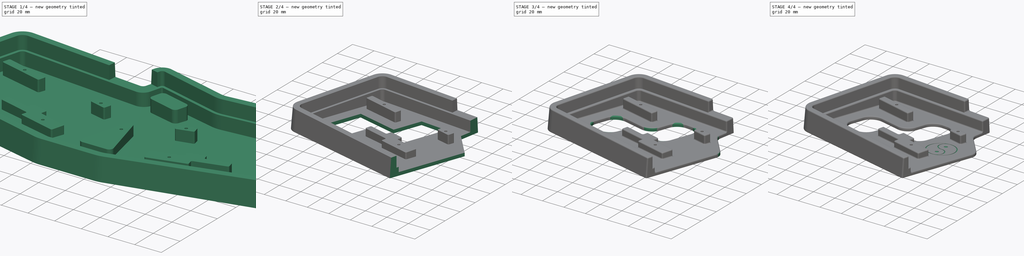
[diagram: build sequence overview — one tinted view per stage of 4, left to right]
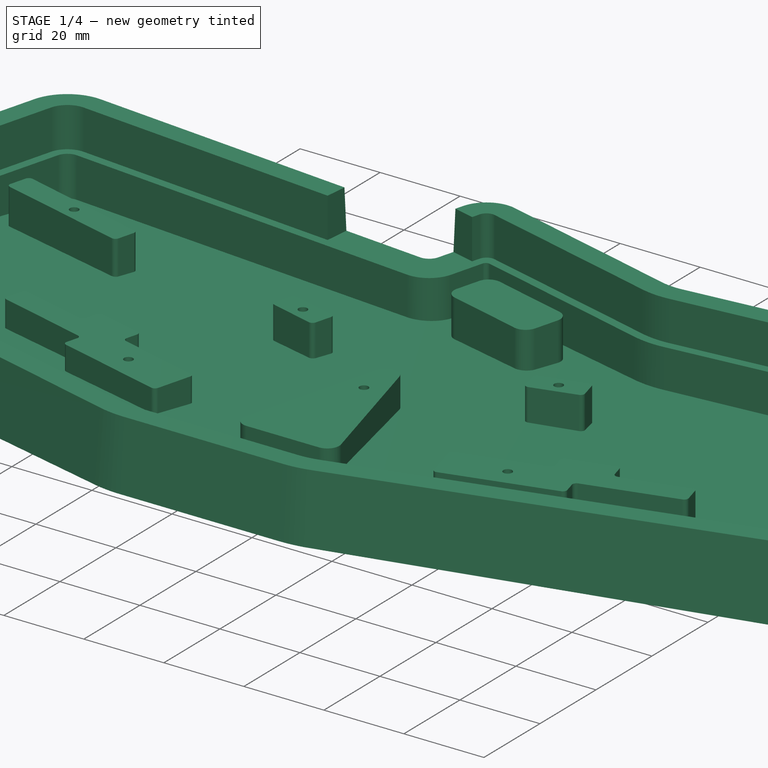
[diagram: stage 1 of 4 — iso view after this stage's code; geometry added in this stage tinted green]
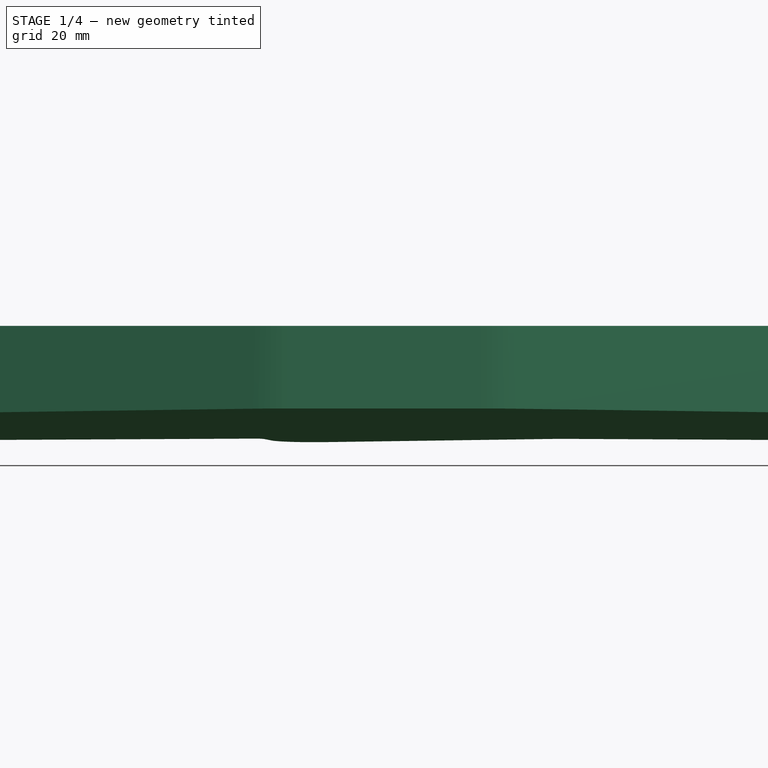
[diagram: stage 1 of 4 — front view after this stage's code; geometry added in this stage tinted green]
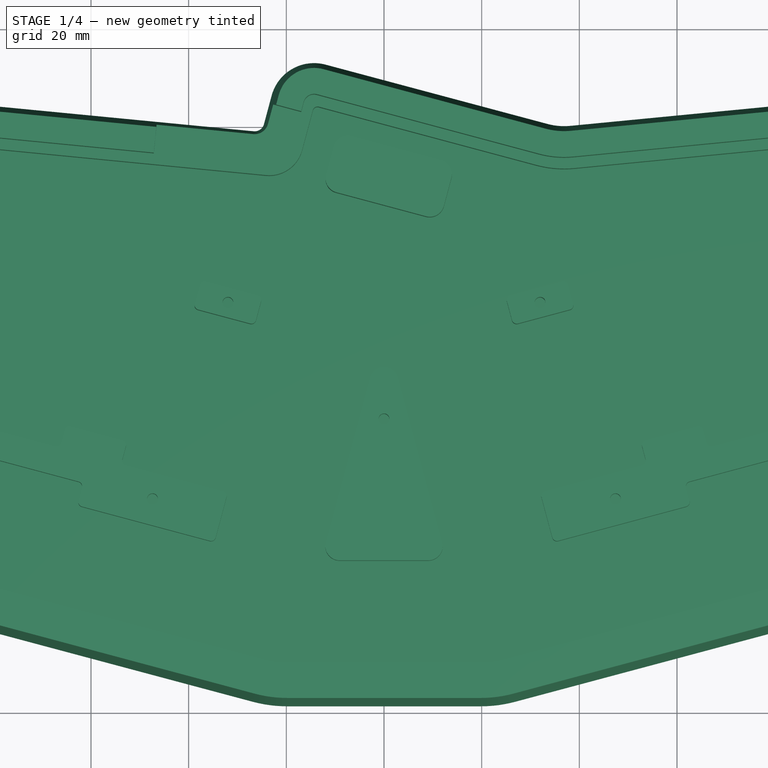
[diagram: stage 1 of 4 — top view after this stage's code; geometry added in this stage tinted green]
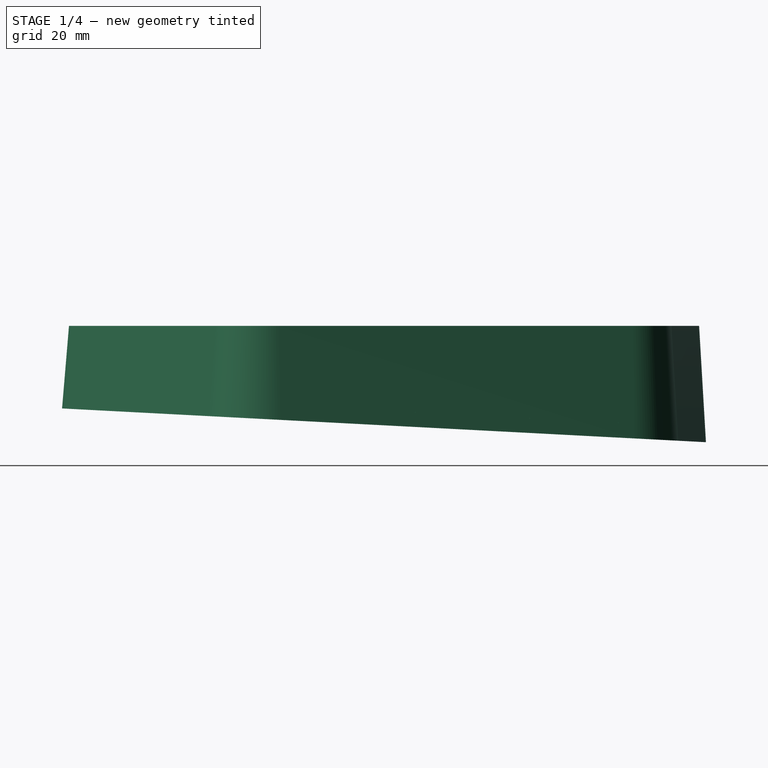
[diagram: stage 1 of 4 — right view after this stage's code; geometry added in this stage tinted green]
FCSTD DOCUMENT  (FreeCAD 0.20R)
Label: left
License: All rights reserved
LicenseURL: http://en.wikipedia.org/wiki/All_rights_reserved
objects: Sketcher::SketchObject×9, PartDesign::Pocket×5, PartDesign::Fillet×4, PartDesign::Hole×2, PartDesign::AdditiveLoft×1, PartDesign::Chamfer×1, PartDesign::Body×1
note: 36 computed .brp shape members not serialized (recipe doc carries the construction recipe); baked Part::Feature solids carry a one-line shape summary decoded from their .brp

FEATURE [Sketcher::SketchObject] Sketch
  AttachmentOffset = pos=(0,0,0) rot=(1,0,0;-0.05236rad)
  FullyConstrained = false
  MapMode = 5
  Placement = pos=(0,0,0) rot=(1,0,0;6.23083rad)
  Support = -> [XY_Plane]
  sketch-geometry (18):
    g0: LineSegment StartX=-11.9861 StartY=72.8819 StartZ=0 EndX=33.5174 EndY=60.6893 EndZ=0
    g1: LineSegment StartX=38.1366 StartY=60.307 StartZ=0 EndX=111.861 EndY=67.4548 EndZ=0
    g2: ArcOfCircle CenterX=113.019 CenterY=55.5108 CenterZ=0 NormalX=0 NormalY=0 NormalZ=1 AngleXU=0 Radius=12 StartAngle=0.261799 EndAngle=1.66745
    g3: LineSegment StartX=124.61 StartY=58.6166 StartZ=0 EndX=144.089 EndY=-14.0812 EndZ=0
    g4: ArcOfCircle CenterX=132.498 CenterY=-17.187 CenterZ=0 NormalX=0 NormalY=0 NormalZ=1 AngleXU=0 Radius=12 StartAngle=4.97419 EndAngle=6.54498
    g5: LineSegment StartX=135.604 StartY=-28.7781 StartZ=0 EndX=26.8319 EndY=-57.9235 EndZ=0
    g6: LineSegment StartX=-19.8438 StartY=-58.8435 StartZ=0 EndX=19.8438 EndY=-58.8435 EndZ=0
    g7: LineSegment StartX=-135.604 StartY=-28.7781 StartZ=0 EndX=-26.8319 EndY=-57.9235 EndZ=0
    g8: ArcOfCircle CenterX=19.8438 CenterY=-31.8435 CenterZ=0 NormalX=0 NormalY=0 NormalZ=1 AngleXU=0 Radius=27 StartAngle=4.71239 EndAngle=4.97419
    g9: ArcOfCircle CenterX=-19.8438 CenterY=-31.8435 CenterZ=0 NormalX=0 NormalY=0 NormalZ=1 AngleXU=0 Radius=27 StartAngle=4.45059 EndAngle=4.71239
    g10: ArcOfCircle CenterX=-132.498 CenterY=-17.187 CenterZ=0 NormalX=0 NormalY=0 NormalZ=1 AngleXU=0 Radius=12 StartAngle=2.87979 EndAngle=4.45059
    g11: LineSegment StartX=-124.61 StartY=58.6166 StartZ=0 EndX=-144.089 EndY=-14.0812 EndZ=0
    g12: ArcOfCircle CenterX=-113.019 CenterY=55.5108 CenterZ=0 NormalX=0 NormalY=0 NormalZ=1 AngleXU=0 Radius=12 StartAngle=1.47415 EndAngle=2.87979
    g13: ArcOfCircle CenterX=-14.3155 CenterY=64.1886 CenterZ=0 NormalX=0 NormalY=0 NormalZ=1 AngleXU=0 Radius=9 StartAngle=1.309 EndAngle=2.87979
    g14: ArcOfCircle CenterX=36.8821 CenterY=73.2463 CenterZ=0 NormalX=0 NormalY=0 NormalZ=1 AngleXU=0 Radius=13 StartAngle=4.45059 EndAngle=4.80904
    g15: LineSegment StartX=-24.5755 StartY=60.6712 StartZ=0 EndX=-23.0088 EndY=66.518 EndZ=0
    g16: LineSegment StartX=-26.7003 StartY=59.1982 StartZ=0 EndX=-111.861 EndY=67.4548 EndZ=0
    g17: ArcOfCircle CenterX=-26.5073 CenterY=61.1889 CenterZ=0 NormalX=0 NormalY=0 NormalZ=1 AngleXU=0 Radius=2 StartAngle=4.61574 EndAngle=6.02139
  constraints (18):
    c: Coincident(g10,g11)
    c: Coincident(g7,g10)
    c: Coincident(g11,g12)
    c: Coincident(g12,g16)
    c: Coincident(g7,g9)
    c: Coincident(g16,g17)
    c: Coincident(g15,g17)
    c: Coincident(g13,g15)
    c: Coincident(g6,g9)
    c: Coincident(g0,g13)
    c: Coincident(g6,g8)
    c: Coincident(g5,g8)
    c: Coincident(g0,g14)
    c: Coincident(g1,g14)
    c: Coincident(g1,g2)
    c: Coincident(g2,g3)
    c: Coincident(g4,g5)
    c: Coincident(g3,g4)
FEATURE [Sketcher::SketchObject] Sketch001
  AttachmentOffset = pos=(0,0,20) rot=(0,0,1;0rad)
  FullyConstrained = false
  MapMode = 5
  Placement = pos=(0,0,20) rot=(0,0,1;0rad)
  Support = -> [XY_Plane]
  sketch-geometry (18):
    g0: ArcOfCircle CenterX=-26.5073 CenterY=61.1889 CenterZ=0 NormalX=0 NormalY=0 NormalZ=1 AngleXU=0 Radius=3.5 StartAngle=4.61574 EndAngle=6.02139
    g1: LineSegment StartX=-23.1266 StartY=60.283 StartZ=0 EndX=-21.56 EndY=66.1297 EndZ=0
    g2: ArcOfCircle CenterX=-14.3155 CenterY=64.1886 CenterZ=0 NormalX=0 NormalY=0 NormalZ=1 AngleXU=0 Radius=7.5 StartAngle=1.309 EndAngle=2.87979
    g3: LineSegment StartX=-12.3744 StartY=71.433 StartZ=0 EndX=33.1292 EndY=59.2404 EndZ=0
    g4: ArcOfCircle CenterX=36.8821 CenterY=73.2463 CenterZ=0 NormalX=0 NormalY=0 NormalZ=1 AngleXU=0 Radius=14.5 StartAngle=4.45059 EndAngle=4.80904
    g5: LineSegment StartX=38.2813 StartY=58.814 StartZ=0 EndX=112.006 EndY=65.9618 EndZ=0
    g6: ArcOfCircle CenterX=113.019 CenterY=55.5108 CenterZ=0 NormalX=0 NormalY=0 NormalZ=1 AngleXU=0 Radius=10.5 StartAngle=0.261799 EndAngle=1.66745
    g7: LineSegment StartX=123.161 StartY=58.2284 StartZ=0 EndX=142.64 EndY=-14.4694 EndZ=0
    g8: ArcOfCircle CenterX=132.498 CenterY=-17.187 CenterZ=0 NormalX=0 NormalY=0 NormalZ=1 AngleXU=0 Radius=10.5 StartAngle=4.97419 EndAngle=6.54498
    g9: LineSegment StartX=135.216 StartY=-27.3292 StartZ=0 EndX=26.4437 EndY=-56.4746 EndZ=0
    g10: LineSegment StartX=-19.8438 StartY=-57.3435 StartZ=0 EndX=19.8438 EndY=-57.3435 EndZ=0
    g11: ArcOfCircle CenterX=19.8438 CenterY=-31.8435 CenterZ=0 NormalX=0 NormalY=0 NormalZ=1 AngleXU=0 Radius=25.5 StartAngle=4.71239 EndAngle=4.97419
    g12: ArcOfCircle CenterX=-19.8438 CenterY=-31.8435 CenterZ=0 NormalX=0 NormalY=0 NormalZ=1 AngleXU=0 Radius=25.5 StartAngle=4.45059 EndAngle=4.71239
    g13: LineSegment StartX=-135.216 StartY=-27.3292 StartZ=0 EndX=-26.4437 EndY=-56.4746 EndZ=0
    g14: ArcOfCircle CenterX=-132.498 CenterY=-17.187 CenterZ=0 NormalX=0 NormalY=0 NormalZ=1 AngleXU=0 Radius=10.5 StartAngle=2.87979 EndAngle=4.45059
    g15: LineSegment StartX=-123.161 StartY=58.2284 StartZ=0 EndX=-142.64 EndY=-14.4694 EndZ=0
    g16: LineSegment StartX=-26.8451 StartY=57.7052 StartZ=0 EndX=-112.006 EndY=65.9618 EndZ=0
    g17: ArcOfCircle CenterX=-113.019 CenterY=55.5108 CenterZ=0 NormalX=0 NormalY=0 NormalZ=1 AngleXU=0 Radius=10.5 StartAngle=1.47415 EndAngle=2.87979
  constraints (18):
    c: Coincident(g14,g15)
    c: Coincident(g13,g14)
    c: Coincident(g15,g17)
    c: Coincident(g16,g17)
    c: Coincident(g0,g16)
    c: Coincident(g12,g13)
    c: Coincident(g0,g1)
    c: Coincident(g1,g2)
    c: Coincident(g10,g12)
    c: Coincident(g2,g3)
    c: Coincident(g10,g11)
    c: Coincident(g9,g11)
    c: Coincident(g3,g4)
    c: Coincident(g4,g5)
    c: Coincident(g5,g6)
    c: Coincident(g6,g7)
    c: Coincident(g8,g9)
    c: Coincident(g7,g8)
FEATURE [PartDesign::AdditiveLoft] AdditiveLoft
  Closed = true
  Profile = -> Sketch001
  Ruled = true
  Sections = -> [Sketch]
FEATURE [Sketcher::SketchObject] Sketch002
  FullyConstrained = false
  MapMode = 5
  Placement = pos=(0,0,20) rot=(0,0,1;0rad)
  Support = -> [AdditiveLoft]
  sketch-geometry (19):
    g0: ArcOfCircle CenterX=-113.019 CenterY=55.5108 CenterZ=0 NormalX=0 NormalY=0 NormalZ=1 AngleXU=0 Radius=5.2 StartAngle=1.47415 EndAngle=2.87979
    g1: LineSegment StartX=-118.042 StartY=56.8566 StartZ=0 EndX=-137.521 EndY=-15.8411 EndZ=0
    g2: ArcOfCircle CenterX=-132.498 CenterY=-17.187 CenterZ=0 NormalX=0 NormalY=0 NormalZ=1 AngleXU=0 Radius=5.2 StartAngle=2.87979 EndAngle=4.45059
    g3: LineSegment StartX=-133.844 StartY=-22.2098 StartZ=0 EndX=-25.072 EndY=-51.3552 EndZ=0
    g4: ArcOfCircle CenterX=-19.8438 CenterY=-31.8435 CenterZ=0 NormalX=0 NormalY=0 NormalZ=1 AngleXU=0 Radius=20.2 StartAngle=4.45059 EndAngle=4.71239
    g5: LineSegment StartX=-19.8438 StartY=-52.0435 StartZ=0 EndX=19.8438 EndY=-52.0435 EndZ=0
    g6: ArcOfCircle CenterX=19.8438 CenterY=-31.8435 CenterZ=0 NormalX=0 NormalY=0 NormalZ=1 AngleXU=0 Radius=20.2 StartAngle=4.71239 EndAngle=4.97419
    g7: LineSegment StartX=133.844 StartY=-22.2098 StartZ=0 EndX=25.072 EndY=-51.3552 EndZ=0
    g8: ArcOfCircle CenterX=132.498 CenterY=-17.187 CenterZ=0 NormalX=0 NormalY=0 NormalZ=1 AngleXU=0 Radius=5.2 StartAngle=4.97419 EndAngle=6.54498
    g9: LineSegment StartX=118.042 StartY=56.8566 StartZ=0 EndX=137.521 EndY=-15.8411 EndZ=0
    g10: ArcOfCircle CenterX=113.019 CenterY=55.5108 CenterZ=0 NormalX=0 NormalY=0 NormalZ=1 AngleXU=0 Radius=5.2 StartAngle=0.261799 EndAngle=1.66745
    g11: LineSegment StartX=38.7928 StartY=53.5387 StartZ=0 EndX=112.517 EndY=60.6865 EndZ=0
    g12: ArcOfCircle CenterX=36.8821 CenterY=73.2463 CenterZ=0 NormalX=0 NormalY=0 NormalZ=1 AngleXU=0 Radius=19.8 StartAngle=4.45059 EndAngle=4.80904
    g13: LineSegment StartX=-13.7461 StartY=66.3136 StartZ=0 EndX=31.7574 EndY=54.121 EndZ=0
    g14: ArcOfCircle CenterX=-14.3155 CenterY=64.1886 CenterZ=0 NormalX=0 NormalY=0 NormalZ=1 AngleXU=0 Radius=2.2 StartAngle=1.309 EndAngle=2.87979
    g15: LineSegment StartX=-47.1347 StartY=54.3475 StartZ=0 EndX=-112.517 EndY=60.6865 EndZ=0
    g16: LineSegment StartX=-45.5694 StartY=70.4925 StartZ=0 EndX=-47.1347 EndY=54.3475 EndZ=0
    g17: LineSegment StartX=-16.9582 StartY=62.8261 StartZ=0 EndX=-45.5694 EndY=70.4925 EndZ=0
    g18: LineSegment StartX=-16.9582 StartY=62.8261 StartZ=0 EndX=-16.4405 EndY=64.758 EndZ=0
  constraints (19):
    c: Coincident(g1,g2)
    c: Coincident(g2,g3)
    c: Coincident(g0,g1)
    c: Coincident(g0,g15)
    c: Coincident(g15,g16)
    c: Coincident(g16,g17)
    c: Coincident(g3,g4)
    c: Coincident(g4,g5)
    c: Coincident(g17,g18)
    c: Coincident(g14,g18)
    c: Coincident(g13,g14)
    c: Coincident(g5,g6)
    c: Coincident(g6,g7)
    c: Coincident(g12,g13)
    c: Coincident(g11,g12)
    c: Coincident(g10,g11)
    c: Coincident(g9,g10)
    c: Coincident(g7,g8)
    c: Coincident(g8,g9)
FEATURE [PartDesign::Pocket] Pocket
  BaseFeature = -> AdditiveLoft
  Direction = (0,0,-1)
  Length = 10
  Length2 = 5
  Profile = -> Sketch002
  ReferenceAxis = -> Sketch002 [N_Axis]
  Type = 0
FEATURE [Sketcher::SketchObject] Sketch003
  FullyConstrained = false
  MapMode = 5
  Placement = pos=(0,0,10) rot=(0,0,1;0rad)
  Support = -> [Pocket]
  sketch-geometry (129):
    g0: ArcOfCircle CenterX=-113.885 CenterY=42.9832 CenterZ=0 NormalX=0 NormalY=0 NormalZ=1 AngleXU=0 Radius=1 StartAngle=1.309 EndAngle=2.87979
    g1: LineSegment StartX=-115.899 StartY=39.33 StartZ=0 EndX=-114.85 EndY=43.242 EndZ=0
    g2: ArcOfCircle CenterX=-114.933 CenterY=39.0712 CenterZ=0 NormalX=0 NormalY=0 NormalZ=1 AngleXU=0 Radius=1 StartAngle=2.87979 EndAngle=4.45059
    g3: LineSegment StartX=-115.192 StartY=38.1052 StartZ=0 EndX=-83.8654 EndY=29.7114 EndZ=0
    g4: ArcOfCircle CenterX=-83.6066 CenterY=30.6773 CenterZ=0 NormalX=0 NormalY=0 NormalZ=1 AngleXU=0 Radius=1 StartAngle=4.45059 EndAngle=6.02139
    g5: LineSegment StartX=-82.6406 StartY=30.4185 StartZ=0 EndX=-81.5924 EndY=34.3305 EndZ=0
    g6: LineSegment StartX=-82.2995 StartY=35.5553 StartZ=0 EndX=-113.626 EndY=43.9491 EndZ=0
    g7: ArcOfCircle CenterX=-82.5584 CenterY=34.5893 CenterZ=0 NormalX=0 NormalY=0 NormalZ=1 AngleXU=0 Radius=1 StartAngle=6.02139 EndAngle=7.59218
    g8: ArcOfCircle CenterX=-26.1231 CenterY=24.3981 CenterZ=0 NormalX=0 NormalY=0 NormalZ=1 AngleXU=0 Radius=1 StartAngle=6.02139 EndAngle=7.59218
    g9: LineSegment StartX=-25.1571 StartY=24.1392 StartZ=0 EndX=-26.2054 EndY=20.2272 EndZ=0
    g10: ArcOfCircle CenterX=-27.1713 CenterY=20.4861 CenterZ=0 NormalX=0 NormalY=0 NormalZ=1 AngleXU=0 Radius=1 StartAngle=4.45059 EndAngle=6.02139
    g11: LineSegment StartX=-38.0553 StartY=22.3671 StartZ=0 EndX=-27.4301 EndY=19.5201 EndZ=0
    g12: ArcOfCircle CenterX=-37.7965 CenterY=23.3331 CenterZ=0 NormalX=0 NormalY=0 NormalZ=1 AngleXU=0 Radius=1 StartAngle=2.87979 EndAngle=4.45059
    g13: LineSegment StartX=-37.7142 StartY=27.5039 StartZ=0 EndX=-38.7624 EndY=23.5919 EndZ=0
    g14: LineSegment StartX=-36.4894 StartY=28.211 StartZ=0 EndX=-25.8643 EndY=25.364 EndZ=0
    g15: ArcOfCircle CenterX=-36.7483 CenterY=27.2451 CenterZ=0 NormalX=0 NormalY=0 NormalZ=1 AngleXU=0 Radius=1 StartAngle=1.309 EndAngle=2.87979
    g16: ArcOfCircle CenterX=-52.5825 CenterY=-8.47381 CenterZ=0 NormalX=0 NormalY=0 NormalZ=1 AngleXU=0 Radius=1 StartAngle=2.87979 EndAngle=4.45059
    g17: LineSegment StartX=-53.5484 StartY=-8.21499 StartZ=0 EndX=-52.8335 EndY=-5.54662 EndZ=0
    g18: ArcOfCircle CenterX=-53.7994 CenterY=-5.28781 CenterZ=0 NormalX=0 NormalY=0 NormalZ=1 AngleXU=0 Radius=1 StartAngle=6.02139 EndAngle=7.59218
    g19: LineSegment StartX=-64.1657 StartY=-1.47487 StartZ=0 EndX=-53.5406 EndY=-4.32188 EndZ=0
    g20: ArcOfCircle CenterX=-64.4246 CenterY=-2.4408 CenterZ=0 NormalX=0 NormalY=0 NormalZ=1 AngleXU=0 Radius=1 StartAngle=1.309 EndAngle=2.87979
    g21: LineSegment StartX=-66.1055 StartY=-4.85035 StartZ=0 EndX=-65.3905 EndY=-2.18198 EndZ=0
    g22: ArcOfCircle CenterX=-67.0714 CenterY=-4.59153 CenterZ=0 NormalX=0 NormalY=0 NormalZ=1 AngleXU=0 Radius=1 StartAngle=4.45059 EndAngle=6.02139
    g23: ArcOfCircle CenterX=-61.598 CenterY=-17.0062 CenterZ=0 NormalX=0 NormalY=0 NormalZ=1 AngleXU=0 Radius=1 StartAngle=2.87979 EndAngle=4.45059
    g24: LineSegment StartX=-62.564 StartY=-16.7473 StartZ=0 EndX=-61.849 EndY=-14.079 EndZ=0
    g25: ArcOfCircle CenterX=-62.8149 CenterY=-13.8201 CenterZ=0 NormalX=0 NormalY=0 NormalZ=1 AngleXU=0 Radius=1 StartAngle=6.02139 EndAngle=7.59218
    g26: ArcOfCircle CenterX=8e-15 CenterY=7.71825 CenterZ=0 NormalX=0 NormalY=0 NormalZ=1 AngleXU=0 Radius=3 StartAngle=0.261799 EndAngle=2.87979
    g27: LineSegment StartX=-2.89778 StartY=8.4947 StartZ=0 EndX=-11.9326 EndY=-25.2235 EndZ=0
    g28: ArcOfCircle CenterX=-9.03478 CenterY=-26 CenterZ=0 NormalX=0 NormalY=0 NormalZ=1 AngleXU=0 Radius=3 StartAngle=2.87979 EndAngle=4.71239
    g29: LineSegment StartX=-9.03478 StartY=-29 StartZ=0 EndX=9.03478 EndY=-29 EndZ=0
    g30: LineSegment StartX=2.89778 StartY=8.4947 StartZ=0 EndX=11.9326 EndY=-25.2235 EndZ=0
    g31: ArcOfCircle CenterX=9.03478 CenterY=-26 CenterZ=0 NormalX=0 NormalY=0 NormalZ=1 AngleXU=0 Radius=3 StartAngle=4.71239 EndAngle=6.54498
    g32: ArcOfCircle CenterX=113.885 CenterY=42.9832 CenterZ=0 NormalX=0 NormalY=0 NormalZ=1 AngleXU=0 Radius=1 StartAngle=0.261799 EndAngle=1.8326
    g33: LineSegment StartX=115.899 StartY=39.33 StartZ=0 EndX=114.85 EndY=43.242 EndZ=0
    g34: ArcOfCircle CenterX=114.933 CenterY=39.0712 CenterZ=0 NormalX=0 NormalY=0 NormalZ=1 AngleXU=0 Radius=1 StartAngle=4.97419 EndAngle=6.54498
    g35: LineSegment StartX=115.192 StartY=38.1052 StartZ=0 EndX=83.8654 EndY=29.7114 EndZ=0
    g36: ArcOfCircle CenterX=83.6066 CenterY=30.6773 CenterZ=0 NormalX=0 NormalY=0 NormalZ=1 AngleXU=0 Radius=1 StartAngle=3.40339 EndAngle=4.97419
    g37: LineSegment StartX=82.6406 StartY=30.4185 StartZ=0 EndX=81.5924 EndY=34.3305 EndZ=0
    g38: LineSegment StartX=82.2995 StartY=35.5553 StartZ=0 EndX=113.626 EndY=43.9491 EndZ=0
    g39: ArcOfCircle CenterX=82.5584 CenterY=34.5893 CenterZ=0 NormalX=0 NormalY=0 NormalZ=1 AngleXU=0 Radius=1 StartAngle=1.8326 EndAngle=3.40339
    g40: ArcOfCircle CenterX=26.1231 CenterY=24.3981 CenterZ=0 NormalX=0 NormalY=0 NormalZ=1 AngleXU=0 Radius=1 StartAngle=1.8326 EndAngle=3.40339
    g41: LineSegment StartX=25.1571 StartY=24.1392 StartZ=0 EndX=26.2054 EndY=20.2272 EndZ=0
    g42: ArcOfCircle CenterX=27.1713 CenterY=20.4861 CenterZ=0 NormalX=0 NormalY=0 NormalZ=1 AngleXU=0 Radius=1 StartAngle=3.40339 EndAngle=4.97419
    g43: LineSegment StartX=38.0553 StartY=22.3671 StartZ=0 EndX=27.4301 EndY=19.5201 EndZ=0
    g44: ArcOfCircle CenterX=37.7965 CenterY=23.3331 CenterZ=0 NormalX=0 NormalY=0 NormalZ=1 AngleXU=0 Radius=1 StartAngle=4.97419 EndAngle=6.54498
    g45: LineSegment StartX=37.7142 StartY=27.5039 StartZ=0 EndX=38.7624 EndY=23.5919 EndZ=0
    g46: LineSegment StartX=36.4894 StartY=28.211 StartZ=0 EndX=25.8643 EndY=25.364 EndZ=0
    g47: ArcOfCircle CenterX=36.7483 CenterY=27.2451 CenterZ=0 NormalX=0 NormalY=0 NormalZ=1 AngleXU=0 Radius=1 StartAngle=0.261799 EndAngle=1.8326
    g48: LineSegment StartX=-52.8413 StartY=-9.43974 StartZ=0 EndX=-32.9433 EndY=-14.7714 EndZ=0
    g49: ArcOfCircle CenterX=-33.2021 CenterY=-15.7373 CenterZ=0 NormalX=0 NormalY=0 NormalZ=1 AngleXU=0 Radius=1 StartAngle=6.02139 EndAngle=7.59218
    g50: LineSegment StartX=-61.8569 StartY=-17.9721 StartZ=0 EndX=-35.6803 EndY=-24.9861 EndZ=0
    g51: LineSegment StartX=-32.2362 StartY=-15.9962 StartZ=0 EndX=-34.4555 EndY=-24.279 EndZ=0
    g52: ArcOfCircle CenterX=-35.4215 CenterY=-24.0202 CenterZ=0 NormalX=0 NormalY=0 NormalZ=1 AngleXU=0 Radius=1 StartAngle=4.45059 EndAngle=6.02139
    g53: LineSegment StartX=-82.9963 StartY=-1.35973 StartZ=0 EndX=-67.3302 EndY=-5.55745 EndZ=0
    g54: ArcOfCircle CenterX=-83.2552 CenterY=-2.32566 CenterZ=0 NormalX=0 NormalY=0 NormalZ=1 AngleXU=0 Radius=1 StartAngle=1.309 EndAngle=2.87979
    g55: LineSegment StartX=-84.5007 StartY=-6.97418 StartZ=0 EndX=-62.5561 EndY=-12.8542 EndZ=0
    g56: LineSegment StartX=-84.2211 StartY=-2.06684 StartZ=0 EndX=-85.2078 EndY=-5.74943 EndZ=0
    g57: ArcOfCircle CenterX=-84.2419 CenterY=-6.00825 CenterZ=0 NormalX=0 NormalY=0 NormalZ=1 AngleXU=0 Radius=1 StartAngle=2.87979 EndAngle=4.45059
    g58: ArcOfCircle CenterX=52.5825 CenterY=-8.47381 CenterZ=0 NormalX=0 NormalY=0 NormalZ=1 AngleXU=0 Radius=1 StartAngle=4.97419 EndAngle=6.54498
    g59: LineSegment StartX=53.5484 StartY=-8.21499 StartZ=0 EndX=52.8335 EndY=-5.54662 EndZ=0
    g60: ArcOfCircle CenterX=53.7994 CenterY=-5.28781 CenterZ=0 NormalX=0 NormalY=0 NormalZ=1 AngleXU=0 Radius=1 StartAngle=1.8326 EndAngle=3.40339
    g61: LineSegment StartX=64.1657 StartY=-1.47487 StartZ=0 EndX=53.5406 EndY=-4.32188 EndZ=0
    g62: ArcOfCircle CenterX=64.4246 CenterY=-2.4408 CenterZ=0 NormalX=0 NormalY=0 NormalZ=1 AngleXU=0 Radius=1 StartAngle=0.261799 EndAngle=1.8326
    g63: LineSegment StartX=66.1055 StartY=-4.85035 StartZ=0 EndX=65.3905 EndY=-2.18198 EndZ=0
    g64: ArcOfCircle CenterX=67.0714 CenterY=-4.59153 CenterZ=0 NormalX=0 NormalY=0 NormalZ=1 AngleXU=0 Radius=1 StartAngle=3.40339 EndAngle=4.97419
    g65: ArcOfCircle CenterX=61.598 CenterY=-17.0062 CenterZ=0 NormalX=0 NormalY=0 NormalZ=1 AngleXU=0 Radius=1 StartAngle=4.97419 EndAngle=6.54498
    g66: LineSegment StartX=62.564 StartY=-16.7473 StartZ=0 EndX=61.849 EndY=-14.079 EndZ=0
    g67: ArcOfCircle CenterX=62.8149 CenterY=-13.8201 CenterZ=0 NormalX=0 NormalY=0 NormalZ=1 AngleXU=0 Radius=1 StartAngle=1.8326 EndAngle=3.40339
    g68: LineSegment StartX=52.8413 StartY=-9.43974 StartZ=0 EndX=32.9433 EndY=-14.7714 EndZ=0
    g69: ArcOfCircle CenterX=33.2021 CenterY=-15.7373 CenterZ=0 NormalX=0 NormalY=0 NormalZ=1 AngleXU=0 Radius=1 StartAngle=1.8326 EndAngle=3.40339
    g70: LineSegment StartX=61.8569 StartY=-17.9721 StartZ=0 EndX=35.6803 EndY=-24.9861 EndZ=0
    g71: LineSegment StartX=32.2362 StartY=-15.9962 StartZ=0 EndX=34.4555 EndY=-24.279 EndZ=0
    g72: ArcOfCircle CenterX=35.4215 CenterY=-24.0202 CenterZ=0 NormalX=0 NormalY=0 NormalZ=1 AngleXU=0 Radius=1 StartAngle=3.40339 EndAngle=4.97419
    g73: LineSegment StartX=82.9963 StartY=-1.35973 StartZ=0 EndX=67.3302 EndY=-5.55745 EndZ=0
    g74: ArcOfCircle CenterX=83.2552 CenterY=-2.32566 CenterZ=0 NormalX=0 NormalY=0 NormalZ=1 AngleXU=0 Radius=1 StartAngle=0.261799 EndAngle=1.8326
    g75: LineSegment StartX=84.5007 StartY=-6.97418 StartZ=0 EndX=62.5561 EndY=-12.8542 EndZ=0
    g76: LineSegment StartX=84.2211 StartY=-2.06684 StartZ=0 EndX=85.2078 EndY=-5.74943 EndZ=0
    g77: ArcOfCircle CenterX=84.2419 CenterY=-6.00825 CenterZ=0 NormalX=0 NormalY=0 NormalZ=1 AngleXU=0 Radius=1 StartAngle=4.97419 EndAngle=6.54498
    g78: ArcOfCircle CenterX=127.67 CenterY=-17.6654 CenterZ=0 NormalX=0 NormalY=0 NormalZ=1 AngleXU=0 Radius=1 StartAngle=4.97419 EndAngle=6.54498
    g79: LineSegment StartX=127.342 StartY=-12.577 StartZ=0 EndX=128.636 EndY=-17.4066 EndZ=0
    g80: ArcOfCircle CenterX=126.376 CenterY=-12.8358 CenterZ=0 NormalX=0 NormalY=0 NormalZ=1 AngleXU=0 Radius=1 StartAngle=0.261799 EndAngle=1.8326
    g81: LineSegment StartX=115.492 StartY=-14.7169 StartZ=0 EndX=126.117 EndY=-11.8699 EndZ=0
    g82: ArcOfCircle CenterX=115.751 CenterY=-15.6828 CenterZ=0 NormalX=0 NormalY=0 NormalZ=1 AngleXU=0 Radius=1 StartAngle=1.8326 EndAngle=3.40339
    g83: LineSegment StartX=116.079 StartY=-20.7713 StartZ=0 EndX=114.785 EndY=-15.9416 EndZ=0
    g84: LineSegment StartX=117.304 StartY=-21.4784 StartZ=0 EndX=127.929 EndY=-18.6314 EndZ=0
    g85: ArcOfCircle CenterX=117.045 CenterY=-20.5124 CenterZ=0 NormalX=0 NormalY=0 NormalZ=1 AngleXU=0 Radius=1 StartAngle=3.40339 EndAngle=4.97419
    g86: Circle CenterX=121.71 CenterY=-16.6741 CenterZ=0 NormalX=0 NormalY=0 NormalZ=-1 AngleXU=0 Radius=1.1
    g87: Circle CenterX=47.4001 CenterY=-16.3717 CenterZ=0 NormalX=0 NormalY=0 NormalZ=-1 AngleXU=0 Radius=1.1
    g88: Circle CenterX=31.9598 CenterY=23.8656 CenterZ=0 NormalX=0 NormalY=0 NormalZ=-1 AngleXU=0 Radius=1.1
    g89: Circle CenterX=98.1026 CenterY=36.658 CenterZ=0 NormalX=0 NormalY=0 NormalZ=-1 AngleXU=0 Radius=1.1
    g90: Circle CenterX=0 CenterY=0 CenterZ=0 NormalX=0 NormalY=0 NormalZ=-1 AngleXU=0 Radius=1.1
    g91: ArcOfCircle CenterX=-127.67 CenterY=-17.6654 CenterZ=0 NormalX=0 NormalY=0 NormalZ=1 AngleXU=0 Radius=1 StartAngle=2.87979 EndAngle=4.45059
    g92: LineSegment StartX=-127.342 StartY=-12.577 StartZ=0 EndX=-128.636 EndY=-17.4066 EndZ=0
    g93: ArcOfCircle CenterX=-126.376 CenterY=-12.8358 CenterZ=0 NormalX=0 NormalY=0 NormalZ=1 AngleXU=0 Radius=1 StartAngle=1.309 EndAngle=2.87979
    g94: LineSegment StartX=-115.492 StartY=-14.7169 StartZ=0 EndX=-126.117 EndY=-11.8699 EndZ=0
    g95: ArcOfCircle CenterX=-115.751 CenterY=-15.6828 CenterZ=0 NormalX=0 NormalY=0 NormalZ=1 AngleXU=0 Radius=1 StartAngle=6.02139 EndAngle=7.59218
    g96: LineSegment StartX=-116.079 StartY=-20.7713 StartZ=0 EndX=-114.785 EndY=-15.9416 EndZ=0
    g97: LineSegment StartX=-117.304 StartY=-21.4784 StartZ=0 EndX=-127.929 EndY=-18.6314 EndZ=0
    g98: ArcOfCircle CenterX=-117.045 CenterY=-20.5124 CenterZ=0 NormalX=0 NormalY=0 NormalZ=1 AngleXU=0 Radius=1 StartAngle=4.45059 EndAngle=6.02139
    g99: Circle CenterX=-121.71 CenterY=-16.6741 CenterZ=0 NormalX=0 NormalY=0 NormalZ=-1 AngleXU=0 Radius=1.1
    g100: Circle CenterX=-47.4001 CenterY=-16.3717 CenterZ=0 NormalX=0 NormalY=0 NormalZ=-1 AngleXU=0 Radius=1.1
    g101: Circle CenterX=-31.9598 CenterY=23.8656 CenterZ=0 NormalX=0 NormalY=0 NormalZ=-1 AngleXU=0 Radius=1.1
    g102: Circle CenterX=-98.1026 CenterY=36.658 CenterZ=0 NormalX=0 NormalY=0 NormalZ=-1 AngleXU=0 Radius=1.1
    g103: LineSegment StartX=-115.917 StartY=56.2872 StartZ=0 EndX=-135.396 EndY=-16.4105 EndZ=0
    g104: LineSegment StartX=-24.1961 StartY=49.9132 StartZ=0 EndX=-112.729 EndY=58.4968 EndZ=0
    g105: LineSegment StartX=39.0051 StartY=51.349 StartZ=0 EndX=112.729 EndY=58.4968 EndZ=0
    g106: LineSegment StartX=115.917 StartY=56.2872 StartZ=0 EndX=135.396 EndY=-16.4105 EndZ=0
    g107: LineSegment StartX=133.275 StartY=-20.0848 StartZ=0 EndX=24.5026 EndY=-49.2302 EndZ=0
    g108: LineSegment StartX=-19.8438 StartY=-49.8435 StartZ=0 EndX=19.8438 EndY=-49.8435 EndZ=0
    g109: LineSegment StartX=-133.275 StartY=-20.0848 StartZ=0 EndX=-24.5026 EndY=-49.2302 EndZ=0
    g110: ArcOfCircle CenterX=-23.5206 CenterY=56.8806 CenterZ=0 NormalX=0 NormalY=0 NormalZ=1 AngleXU=0 Radius=7 StartAngle=4.61574 EndAngle=6.02139
    g111: ArcOfCircle CenterX=-113.019 CenterY=55.5108 CenterZ=0 NormalX=0 NormalY=0 NormalZ=1 AngleXU=0 Radius=3 StartAngle=1.47415 EndAngle=2.87979
    g112: ArcOfCircle CenterX=-132.498 CenterY=-17.187 CenterZ=0 NormalX=0 NormalY=0 NormalZ=1 AngleXU=0 Radius=3 StartAngle=2.87979 EndAngle=4.45059
    g113: ArcOfCircle CenterX=-19.8438 CenterY=-31.8435 CenterZ=0 NormalX=0 NormalY=0 NormalZ=1 AngleXU=0 Radius=18 StartAngle=4.45059 EndAngle=4.71239
    g114: ArcOfCircle CenterX=19.8438 CenterY=-31.8435 CenterZ=0 NormalX=0 NormalY=0 NormalZ=1 AngleXU=0 Radius=18 StartAngle=4.71239 EndAngle=4.97419
    g115: ArcOfCircle CenterX=132.498 CenterY=-17.187 CenterZ=0 NormalX=0 NormalY=0 NormalZ=1 AngleXU=0 Radius=3 StartAngle=4.97419 EndAngle=6.54498
    g116: ArcOfCircle CenterX=113.019 CenterY=55.5108 CenterZ=0 NormalX=0 NormalY=0 NormalZ=1 AngleXU=0 Radius=3 StartAngle=0.261799 EndAngle=1.66745
    g117: ArcOfCircle CenterX=36.8821 CenterY=73.2463 CenterZ=0 NormalX=0 NormalY=0 NormalZ=1 AngleXU=0 Radius=22 StartAngle=4.45059 EndAngle=4.80904
    g118: ArcOfCircle CenterX=-7.43391 CenterY=55.0977 CenterZ=0 NormalX=0 NormalY=0 NormalZ=1 AngleXU=0 Radius=3 StartAngle=1.309 EndAngle=2.87979
    g119: LineSegment StartX=-11.8846 StartY=50.0786 StartZ=0 EndX=-10.3317 EndY=55.8742 EndZ=0
    g120: ArcOfCircle CenterX=-8.98683 CenterY=49.3022 CenterZ=0 NormalX=0 NormalY=0 NormalZ=1 AngleXU=0 Radius=3 StartAngle=2.87979 EndAngle=4.45059
    g121: LineSegment StartX=8.58931 StartY=41.4868 StartZ=0 EndX=-9.76328 EndY=46.4044 EndZ=0
    g122: ArcOfCircle CenterX=9.36576 CenterY=44.3846 CenterZ=0 NormalX=0 NormalY=0 NormalZ=1 AngleXU=0 Radius=3 StartAngle=4.45059 EndAngle=6.02139
    g123: LineSegment StartX=13.8165 StartY=49.4037 StartZ=0 EndX=12.2635 EndY=43.6082 EndZ=0
    g124: LineSegment StartX=-6.65746 StartY=57.9955 StartZ=0 EndX=11.6951 EndY=53.078 EndZ=0
    g125: ArcOfCircle CenterX=10.9187 CenterY=50.1802 CenterZ=0 NormalX=0 NormalY=0 NormalZ=1 AngleXU=0 Radius=3 StartAngle=6.02139 EndAngle=7.59218
    g126: LineSegment StartX=-16.7591 StartY=55.0688 StartZ=0 EndX=-14.5743 EndY=63.2227 EndZ=0
    g127: LineSegment StartX=-13.3496 StartY=63.9298 StartZ=0 EndX=31.188 EndY=51.996 EndZ=0
    g128: ArcOfCircle CenterX=-13.6084 CenterY=62.9638 CenterZ=0 NormalX=0 NormalY=0 NormalZ=1 AngleXU=0 Radius=1 StartAngle=1.309 EndAngle=2.87979
  constraints (120):
    c: Coincident(g103,g112)
    c: Coincident(g109,g112)
    c: Coincident(g91,g92)
    c: Coincident(g91,g97)
    c: Coincident(g92,g93)
    c: Coincident(g93,g94)
    c: Coincident(g97,g98)
    c: Coincident(g96,g98)
    c: Coincident(g103,g111)
    c: Coincident(g1,g2)
    c: Coincident(g94,g95)
    c: Coincident(g2,g3)
    c: Coincident(g0,g1)
    c: Coincident(g95,g96)
    c: Coincident(g0,g6)
    c: Coincident(g104,g111)
    c: Coincident(g56,g57)
    c: Coincident(g55,g57)
    c: Coincident(g54,g56)
    c: Coincident(g3,g4)
    c: Coincident(g53,g54)
    c: Coincident(g4,g5)
    c: Coincident(g6,g7)
    c: Coincident(g5,g7)
    c: Coincident(g22,g53)
    c: Coincident(g21,g22)
    c: Coincident(g20,g21)
    c: Coincident(g19,g20)
    c: Coincident(g23,g24)
    c: Coincident(g25,g55)
    c: Coincident(g23,g50)
    c: Coincident(g24,g25)
    c: Coincident(g16,g17)
    c: Coincident(g18,g19)
    c: Coincident(g16,g48)
    c: Coincident(g17,g18)
    c: Coincident(g12,g13)
    c: Coincident(g11,g12)
    c: Coincident(g13,g15)
    c: Coincident(g14,g15)
    c: Coincident(g50,g52)
    c: Coincident(g51,g52)
    c: Coincident(g48,g49)
    c: Coincident(g49,g51)
    c: Coincident(g10,g11)
    c: Coincident(g9,g10)
    c: Coincident(g8,g14)
    c: Coincident(g8,g9)
    c: Coincident(g109,g113)
    c: Coincident(g104,g110)
    c: Coincident(g108,g113)
    c: Coincident(g110,g126)
    c: Coincident(g126,g128)
    c: Coincident(g127,g128)
    c: Coincident(g27,g28)
    c: Coincident(g119,g120)
    c: Coincident(g118,g119)
    c: Coincident(g120,g121)
    c: Coincident(g28,g29)
    c: Coincident(g118,g124)
    c: Coincident(g26,g27)
    c: Coincident(g26,g30)
    c: Coincident(g121,g122)
    c: Coincident(g29,g31)
    c: Coincident(g124,g125)
    c: Coincident(g30,g31)
    c: Coincident(g122,g123)
    c: Coincident(g123,g125)
    c: Coincident(g108,g114)
    c: Coincident(g107,g114)
    c: Coincident(g40,g41)
    c: Coincident(g40,g46)
    c: Coincident(g41,g42)
    c: Coincident(g42,g43)
    c: Coincident(g117,g127)
    c: Coincident(g69,g71)
    c: Coincident(g68,g69)
    c: Coincident(g71,g72)
    c: Coincident(g70,g72)
    c: Coincident(g46,g47)
    c: Coincident(g45,g47)
    c: Coincident(g43,g44)
    c: Coincident(g44,g45)
    c: Coincident(g105,g117)
    c: Coincident(g59,g60)
    c: Coincident(g58,g68)
    c: Coincident(g60,g61)
    c: Coincident(g58,g59)
    c: Coincident(g66,g67)
    c: Coincident(g65,g70)
    c: Coincident(g67,g75)
    c: Coincident(g65,g66)
    c: Coincident(g61,g62)
    c: Coincident(g62,g63)
    c: Coincident(g63,g64)
    c: Coincident(g64,g73)
    c: Coincident(g37,g39)
    c: Coincident(g38,g39)
    c: Coincident(g36,g37)
    c: Coincident(g73,g74)
    c: Coincident(g35,g36)
    c: Coincident(g74,g76)
    c: Coincident(g75,g77)
    c: Coincident(g76,g77)
    c: Coincident(g105,g116)
    c: Coincident(g32,g38)
    c: Coincident(g82,g83)
    c: Coincident(g32,g33)
    c: Coincident(g34,g35)
    c: Coincident(g81,g82)
    c: Coincident(g33,g34)
    c: Coincident(g106,g116)
    c: Coincident(g83,g85)
    c: Coincident(g84,g85)
    c: Coincident(g80,g81)
    c: Coincident(g79,g80)
    c: Coincident(g78,g84)
    c: Coincident(g78,g79)
    c: Coincident(g107,g115)
    c: Coincident(g106,g115)
FEATURE [PartDesign::Pocket] Pocket001
  BaseFeature = -> Pocket
  Direction = (0,0,-1)
  Length = 0
  Length2 = 5
  Offset = -3
  Profile = -> Sketch003
  ReferenceAxis = -> Sketch003 [N_Axis]
  Type = 3
  UpToFace = -> Pocket [Face40]
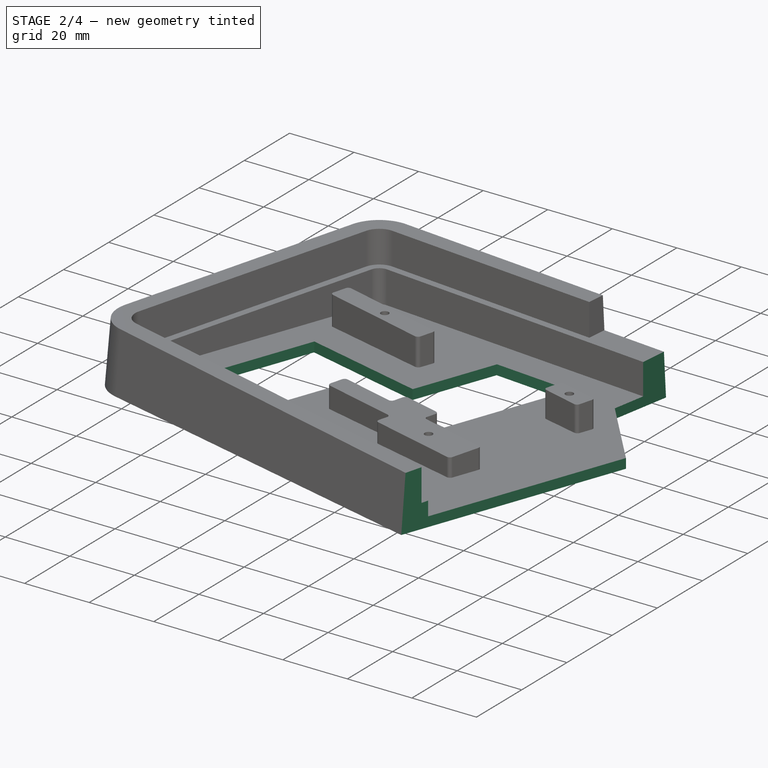
[diagram: stage 2 of 4 — iso view after this stage's code; geometry added in this stage tinted green]
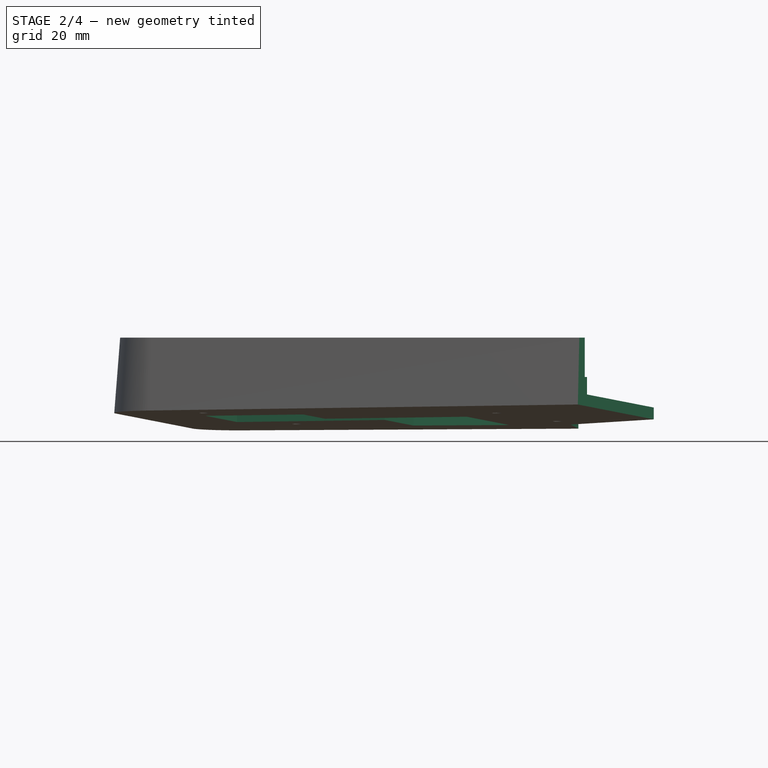
[diagram: stage 2 of 4 — front view after this stage's code; geometry added in this stage tinted green]
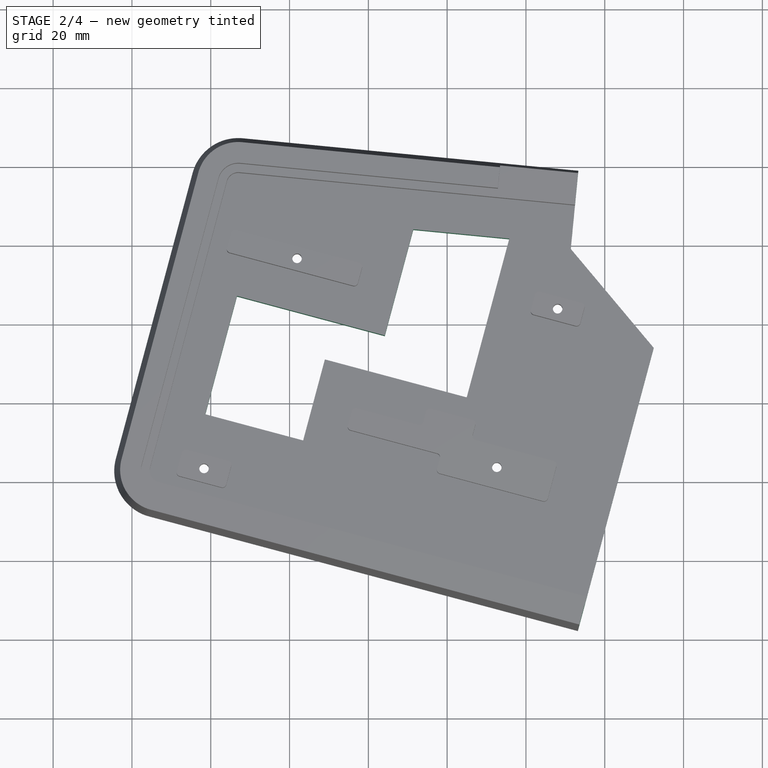
[diagram: stage 2 of 4 — top view after this stage's code; geometry added in this stage tinted green]
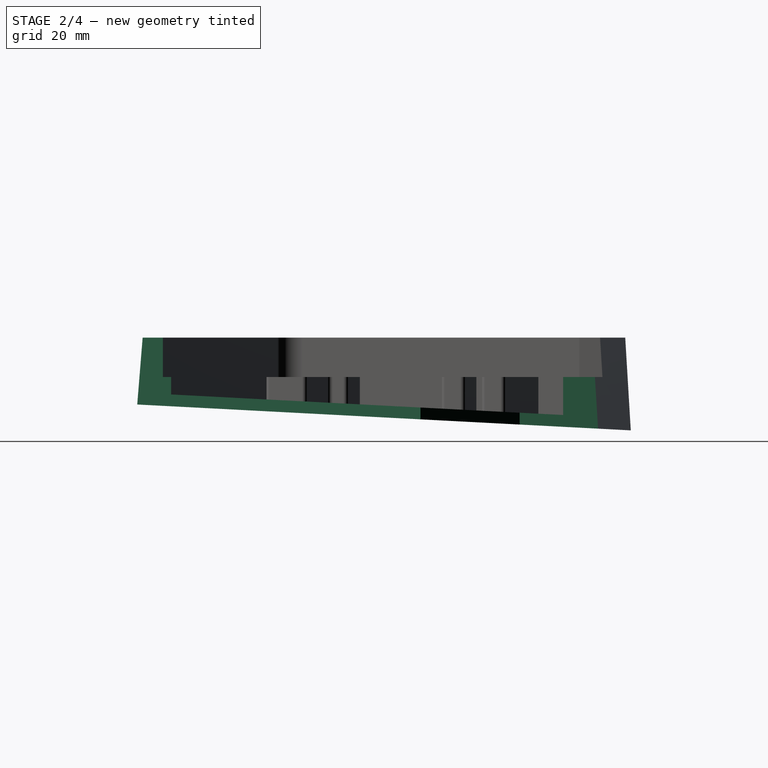
[diagram: stage 2 of 4 — right view after this stage's code; geometry added in this stage tinted green]
FEATURE [Sketcher::SketchObject] Sketch005
  FullyConstrained = false
  MapMode = 5
  Placement = pos=(0,0,10) rot=(0,0,1;0rad)
  sketch-geometry (4):
    g0: Circle CenterX=-121.71 CenterY=-16.6741 CenterZ=0 NormalX=0 NormalY=0 NormalZ=1 AngleXU=0 Radius=1.1
    g1: Circle CenterX=-47.4001 CenterY=-16.3717 CenterZ=0 NormalX=0 NormalY=0 NormalZ=1 AngleXU=0 Radius=1.1
    g2: Circle CenterX=-31.9598 CenterY=23.8656 CenterZ=0 NormalX=0 NormalY=0 NormalZ=1 AngleXU=0 Radius=1.1
    g3: Circle CenterX=-98.1026 CenterY=36.658 CenterZ=0 NormalX=0 NormalY=0 NormalZ=1 AngleXU=0 Radius=1.1
  constraints (4):
    c: Equal(g3,g2)
    c: Equal(g2,g1)
    c: Equal(g1,g0)
    c: Diameter(g1) = 2.2
FEATURE [PartDesign::Hole] Hole
  BaseFeature = -> Pocket001
  CustomThreadClearance = 0
  Depth = 643.046
  DepthType = 1
  Diameter = 2.42
  DrillForDepth = false
  DrillPoint = 1
  DrillPointAngle = 118
  HoleCutCountersinkAngle = 90
  HoleCutCustomValues = false
  HoleCutDepth = 0
  HoleCutDiameter = 6.1
  HoleCutType = 0
  ModelThread = false
  Profile = -> Sketch005
  Tapered = false
  TaperedAngle = 90
  ThreadClass = 0
  ThreadDepth = 643.046
  ThreadDepthType = 0
  ThreadDirection = 0
  ThreadFit = 0
  ThreadSize = 7
  ThreadType = 1
  Threaded = false
  UseCustomThreadClearance = false
FEATURE [Sketcher::SketchObject] Sketch006
  ExternalGeometry = -> [Hole]
  FullyConstrained = true
  MapMode = 5
  Placement = pos=(0,0,20) rot=(0,0,1;0rad)
  Support = -> [Hole]
  sketch-geometry (7):
    g0: LineSegment StartX=-28.6277 StartY=39.2102 StartZ=0 EndX=-23.7102 EndY=90 EndZ=0
    g1: LineSegment StartX=-23.7102 StartY=90 StartZ=0 EndX=156.29 EndY=90 EndZ=0
    g2: LineSegment StartX=156.29 StartY=90 StartZ=0 EndX=156.29 EndY=-90 EndZ=0
    g3: LineSegment StartX=156.29 StartY=-90 StartZ=0 EndX=-35.4481 EndY=-90 EndZ=0
    g4: LineSegment StartX=-35.4481 StartY=-90 StartZ=0 EndX=-7.56394 EndY=14.065 EndZ=0
    g5: LineSegment StartX=-7.56394 StartY=14.065 StartZ=0 EndX=-28.6277 EndY=39.2102 EndZ=0
    g6: LineSegment StartX=-28.6277 StartY=39.2102 StartZ=0 EndX=-2.89778 EndY=8.4947 EndZ=0
  constraints (19):
    c: Coincident(g0,g1)
    c: Horizontal(g1)
    c: Coincident(g1,g2)
    c: Coincident(g2,g3)
    c: Horizontal(g3)
    c: Perpendicular(g-3,g0)
    c: PointOnObject(g-3,g0)
    c: Distance(g1) = 180
    c: Distance(g2) = 180
    c: Symmetric(g2,g1,g-1)
    c: Distance(g-3,g0) = 20
    c: Coincident(g3,g4)
    c: Coincident(g4,g5)
    c: Coincident(g5,g0)
    c: PointOnObject(g-4,g4)
    c: Parallel(g4,g-5)
    c: Coincident(g6,g0)
    c: Coincident(g6,g-5)
    c: PointOnObject(g4,g6)
FEATURE [PartDesign::Pocket] Pocket002
  BaseFeature = -> Hole
  Direction = (0,0,-1)
  Length = 5
  Length2 = 5
  Profile = -> Sketch006
  ReferenceAxis = -> Sketch006 [N_Axis]
  Type = 1
FEATURE [Sketcher::SketchObject] Sketch007
  ExternalGeometry = -> [Pocket002]
  FullyConstrained = true
  MapMode = 5
  Placement = pos=(0,0.156793,2.99178) rot=(-1,0,0;0.05236rad)
  Support = -> [Pocket002]
  sketch-geometry (8):
    g0: LineSegment StartX=-121.396 StartY=-2.95621 StartZ=0 EndX=-113.34 EndY=27.15 EndZ=0
    g1: LineSegment StartX=-113.34 StartY=27.15 StartZ=0 EndX=-75.826 EndY=17.0844 EndZ=0
    g2: LineSegment StartX=-75.826 StartY=17.0844 StartZ=0 EndX=-68.6001 EndY=44.0887 EndZ=0
    g3: LineSegment StartX=-68.6001 StartY=44.0887 StartZ=0 EndX=-44.2294 EndY=41.7226 EndZ=0
    g4: LineSegment StartX=-44.2294 StartY=41.7226 StartZ=0 EndX=-55.0369 EndY=1.33312 EndZ=0
    g5: LineSegment StartX=-55.0369 StartY=1.33312 StartZ=0 EndX=-91.0358 EndY=10.9922 EndZ=0
    g6: LineSegment StartX=-91.0358 StartY=10.9922 StartZ=0 EndX=-96.5518 EndY=-9.62233 EndZ=0
    g7: LineSegment StartX=-96.5518 StartY=-9.62233 StartZ=0 EndX=-121.396 EndY=-2.95621 EndZ=0
  constraints (24):
    c: Coincident(g0,g1)
    c: Coincident(g1,g2)
    c: Coincident(g2,g3)
    c: Coincident(g3,g4)
    c: Coincident(g4,g5)
    c: Coincident(g5,g6)
    c: Coincident(g6,g7)
    c: Coincident(g7,g0)
    c: Parallel(g3,g-5)
    c: Parallel(g4,g-12)
    c: Parallel(g2,g-11)
    c: Parallel(g-10,g1)
    c: Parallel(g0,g-3)
    c: Parallel(g-9,g6)
    c: Parallel(g-8,g5)
    c: Parallel(g-7,g7)
    c: Distance(g0,g-3) = 10
    c: Distance(g0,g-7) = 10
    c: Distance(g0,g-10) = 10
    c: Distance(g-9,g6) = 10
    c: Distance(g-8,g5) = 10
    c: Distance(g2,g-5) = 10
    c: Distance(g-12,g4) = 10
    c: Distance(g-11,g2) = 10
FEATURE [PartDesign::Pocket] Pocket003
  BaseFeature = -> Pocket002
  Direction = (0,-0.052336,-0.99863)
  Length = 5
  Length2 = 5
  Profile = -> Sketch007
  ReferenceAxis = -> Sketch007 [N_Axis]
  Type = 1
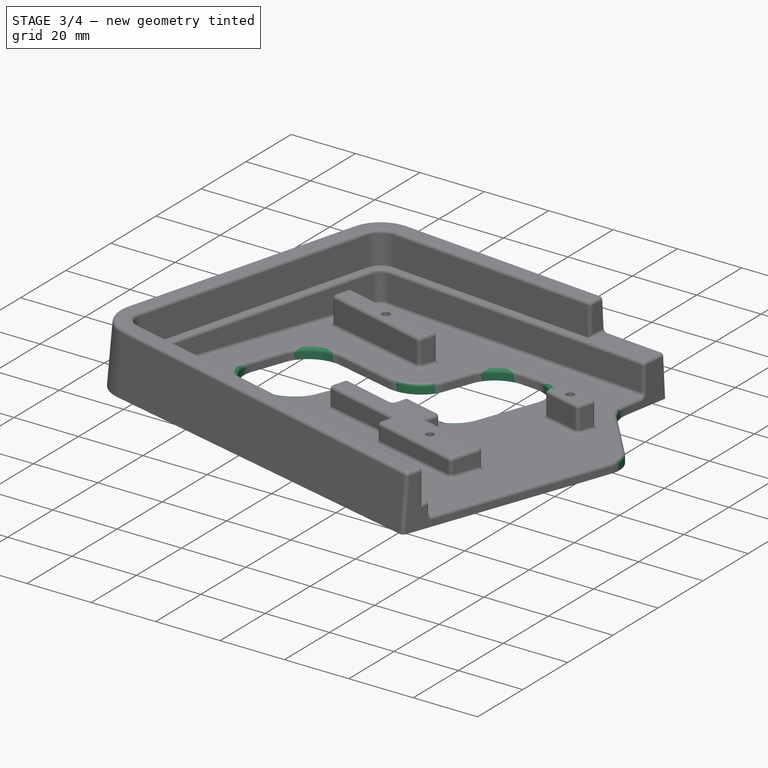
[diagram: stage 3 of 4 — iso view after this stage's code; geometry added in this stage tinted green]
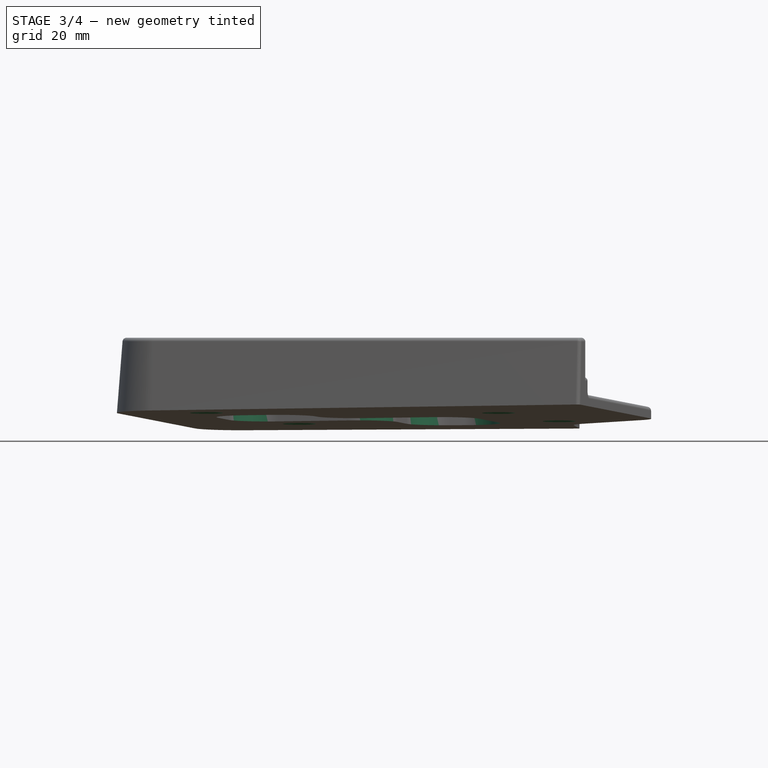
[diagram: stage 3 of 4 — front view after this stage's code; geometry added in this stage tinted green]
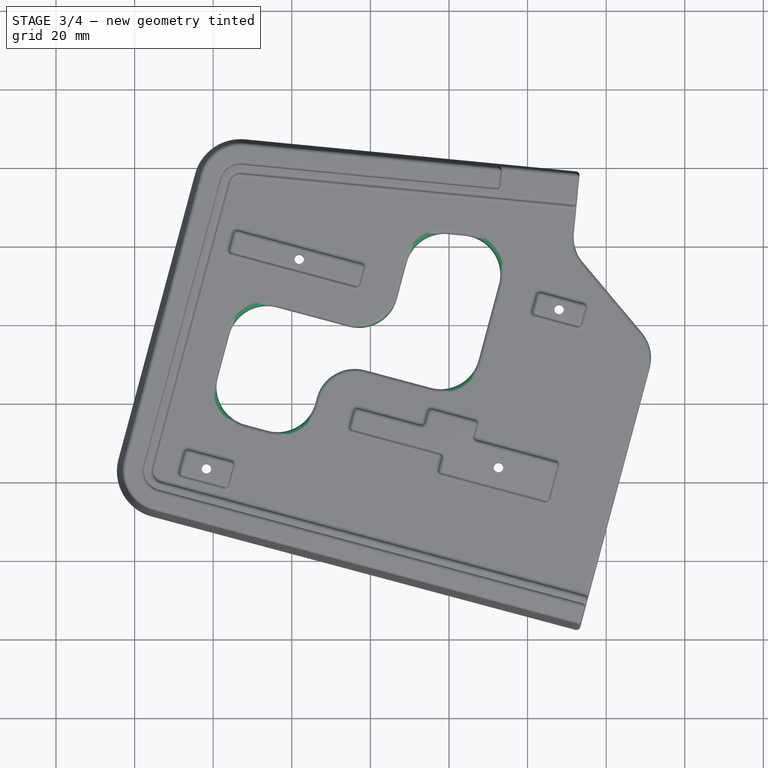
[diagram: stage 3 of 4 — top view after this stage's code; geometry added in this stage tinted green]
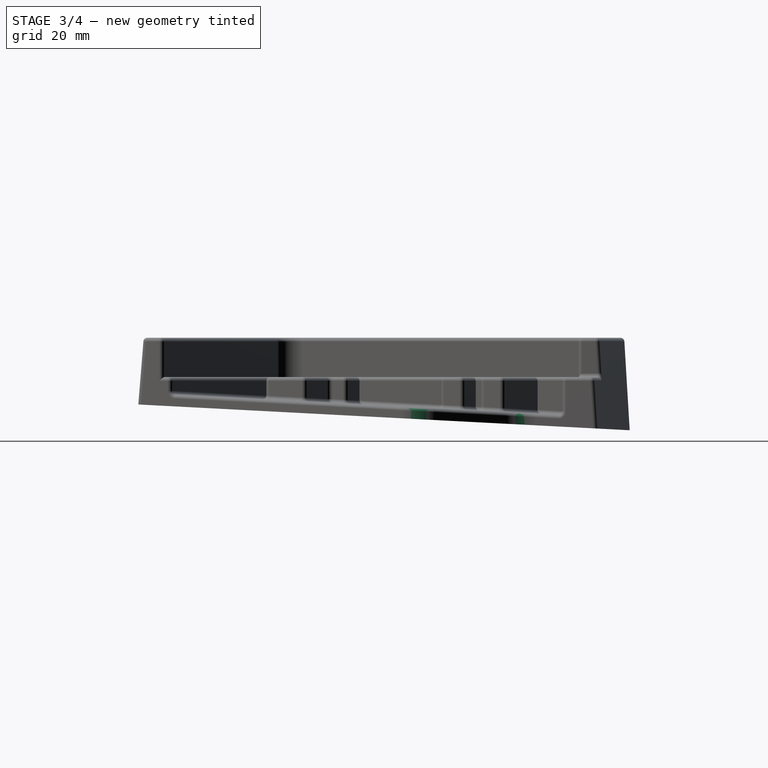
[diagram: stage 3 of 4 — right view after this stage's code; geometry added in this stage tinted green]
FEATURE [PartDesign::Fillet] Fillet
  Base = -> Pocket003 [Edge202,Edge203,Edge209,Edge208,Edge204,Edge205,Edge206,Edge207,Edge110,Edge29]
  BaseFeature = -> Pocket003
  Radius = 10
  SupportTransform = false
  UseAllEdges = false
FEATURE [Sketcher::SketchObject] Sketch008
  ExternalGeometry = -> [Fillet]
  FullyConstrained = true
  MapMode = 5
  Placement = pos=(0,0,10) rot=(0,0,1;0rad)
  Support = -> [Fillet]
  sketch-geometry (4):
    g0: Circle CenterX=-98.1026 CenterY=36.658 CenterZ=0 NormalX=0 NormalY=0 NormalZ=1 AngleXU=0 Radius=1.1
    g1: Circle CenterX=-31.9598 CenterY=23.8656 CenterZ=0 NormalX=0 NormalY=0 NormalZ=1 AngleXU=0 Radius=1.1
    g2: Circle CenterX=-47.4001 CenterY=-16.3717 CenterZ=0 NormalX=0 NormalY=0 NormalZ=1 AngleXU=0 Radius=1.1
    g3: Circle CenterX=-121.71 CenterY=-16.6741 CenterZ=0 NormalX=0 NormalY=0 NormalZ=1 AngleXU=0 Radius=1.1
  constraints (8):
    c: Equal(g1,g0)
    c: Equal(g0,g3)
    c: Equal(g3,g2)
    c: Coincident(g-6,g3)
    c: Coincident(g0,g-3)
    c: Coincident(g1,g-4)
    c: Coincident(g2,g-5)
    c: Diameter(g0) = 2.2
FEATURE [PartDesign::Hole] Hole001
  BaseFeature = -> Fillet
  CustomThreadClearance = 0
  Depth = 376.304
  DepthType = 1
  Diameter = 2.42
  DrillForDepth = false
  DrillPoint = 1
  DrillPointAngle = 118
  HoleCutCountersinkAngle = 90
  HoleCutCustomValues = false
  HoleCutDepth = 0
  HoleCutDiameter = 6.1
  HoleCutType = 0
  ModelThread = false
  Profile = -> Sketch008
  Tapered = false
  TaperedAngle = 90
  ThreadClass = 0
  ThreadDepth = 376.304
  ThreadDepthType = 0
  ThreadDirection = 0
  ThreadFit = 0
  ThreadSize = 7
  ThreadType = 1
  Threaded = false
  UseCustomThreadClearance = false
FEATURE [PartDesign::Chamfer] Chamfer
  Angle = 45
  Base = -> Hole001 [Edge93,Edge91,Edge90,Edge92]
  BaseFeature = -> Hole001
  ChamferType = 0
  FlipDirection = false
  Size = 3
  Size2 = 1
  SupportTransform = false
  UseAllEdges = false
FEATURE [PartDesign::Fillet] Fillet001
  Base = -> Chamfer [Edge151,Edge153,Edge170,Edge44,Edge43,Edge36,Edge37,Edge35,Edge33,Edge102,Edge256,Edge65,Edge202,Edge165,Edge164,Edge40,Edge58,Edge57,Edge56,Edge55,Edge54,Edge236,Edge182,Face33]
  BaseFeature = -> Chamfer
  Radius = 1
  SupportTransform = false
  UseAllEdges = false
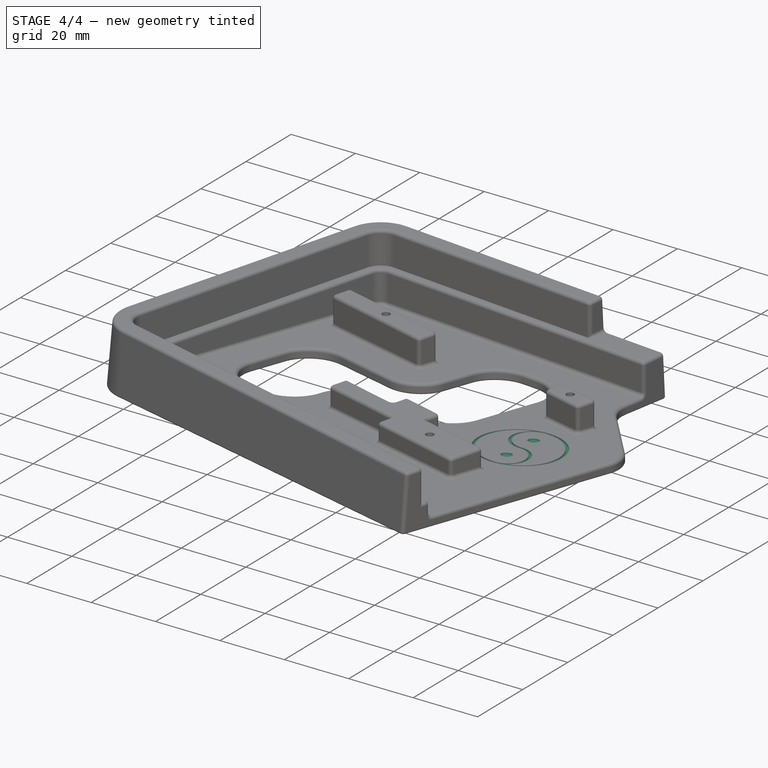
[diagram: stage 4 of 4 — iso view after this stage's code; geometry added in this stage tinted green]
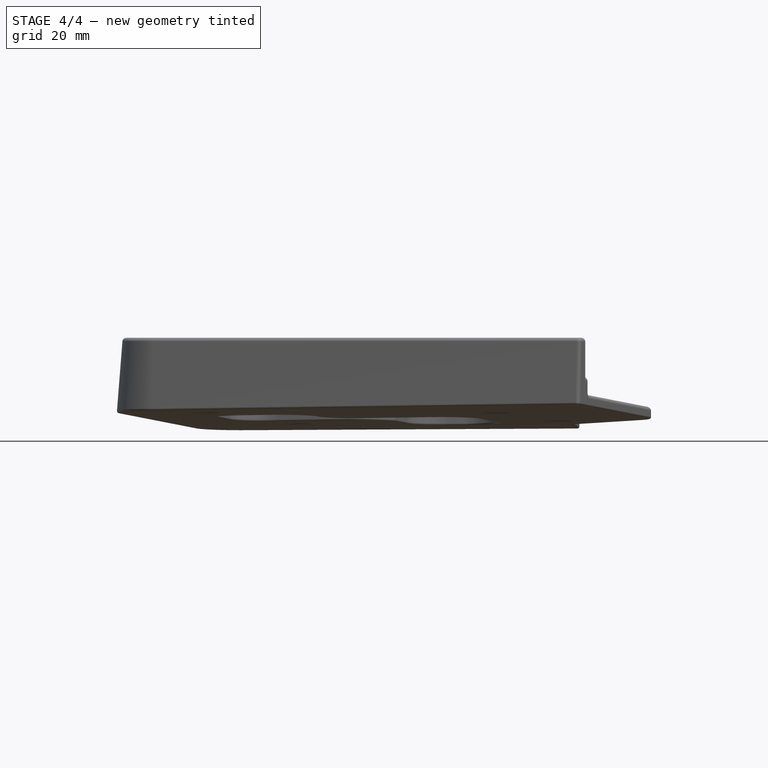
[diagram: stage 4 of 4 — front view after this stage's code; geometry added in this stage tinted green]
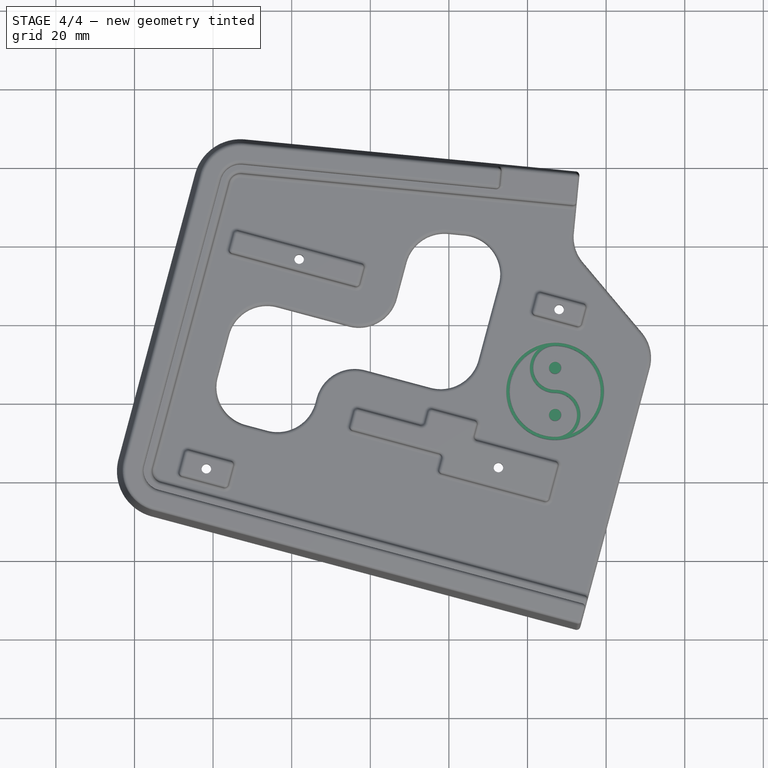
[diagram: stage 4 of 4 — top view after this stage's code; geometry added in this stage tinted green]
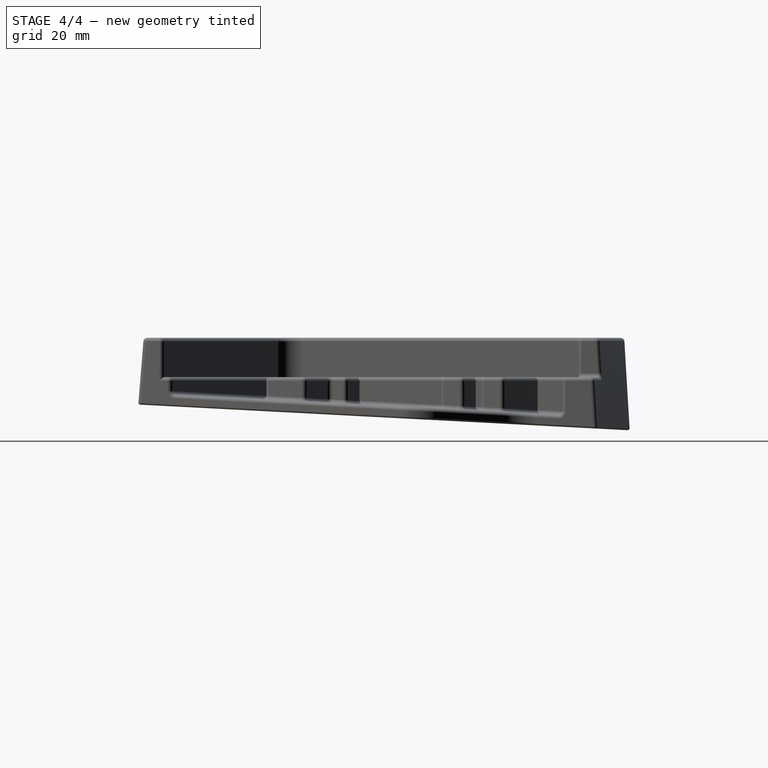
[diagram: stage 4 of 4 — right view after this stage's code; geometry added in this stage tinted green]
FEATURE [PartDesign::Fillet] Fillet002
  Base = -> Fillet001 [Face1]
  BaseFeature = -> Fillet001
  Radius = 0.5
  SupportTransform = false
  UseAllEdges = false
FEATURE [Sketcher::SketchObject] Sketch009
  AttachmentOffset = pos=(-33,3,0) rot=(0,0,1;0rad)
  FullyConstrained = false
  MapMode = 5
  Placement = pos=(-33,3.15268,2.83477) rot=(-1,0,0;0.05236rad)
  Support = -> [Pocket001]
  sketch-geometry (9):
    g0: Circle CenterX=0 CenterY=6 CenterZ=0 NormalX=0 NormalY=0 NormalZ=-1 AngleXU=0 Radius=1.5
    g1: Circle CenterX=0 CenterY=-6 CenterZ=0 NormalX=0 NormalY=0 NormalZ=-1 AngleXU=0 Radius=1.5
    g2: Circle CenterX=0 CenterY=0 CenterZ=0 NormalX=0 NormalY=0 NormalZ=-1 AngleXU=0 Radius=12.375
    g3: ArcOfCircle CenterX=0 CenterY=6 CenterZ=0 NormalX=0 NormalY=0 NormalZ=1 AngleXU=0 Radius=5.625 StartAngle=1.5708 EndAngle=4.71239
    g4: ArcOfCircle CenterX=0 CenterY=-6 CenterZ=0 NormalX=0 NormalY=0 NormalZ=1 AngleXU=0 Radius=5.625 StartAngle=4.71239 EndAngle=7.85398
    g5: ArcOfCircle CenterX=0 CenterY=-6 CenterZ=0 NormalX=0 NormalY=0 NormalZ=1 AngleXU=0 Radius=6.375 StartAngle=5.4126 EndAngle=7.85398
    g6: ArcOfCircle CenterX=0 CenterY=0 CenterZ=0 NormalX=0 NormalY=0 NormalZ=1 AngleXU=0 Radius=11.625 StartAngle=1.93197 EndAngle=4.71239
    g7: ArcOfCircle CenterX=0 CenterY=6 CenterZ=0 NormalX=0 NormalY=0 NormalZ=1 AngleXU=0 Radius=6.375 StartAngle=2.27101 EndAngle=4.71239
    g8: ArcOfCircle CenterX=0 CenterY=0 CenterZ=0 NormalX=0 NormalY=0 NormalZ=1 AngleXU=0 Radius=11.625 StartAngle=5.07356 EndAngle=7.85398
FEATURE [PartDesign::Pocket] Pocket004
  BaseFeature = -> Fillet002
  Direction = (0,-0.052336,-0.99863)
  Length = 0.5
  Length2 = 5
  Profile = -> Sketch009
  ReferenceAxis = -> Sketch009 [N_Axis]
  Type = 0
FEATURE [PartDesign::Fillet] Fillet003
  Base = -> Pocket004 [Face291,Face292,Edge275]
  BaseFeature = -> Pocket004
  Radius = 0.25
  SupportTransform = false
  UseAllEdges = false
FEATURE [PartDesign::Body] Body
  Group = -> [Sketch,Sketch001,AdditiveLoft,Sketch002,Pocket,Sketch003,Pocket001,Sketch005,Hole,Sketch006,Pocket002,Sketch007,Pocket003,Fillet,Sketch008,Hole001,Chamfer,Fillet001,Fillet002,Sketch009,Pocket004,Fillet003]
  Origin = -> Origin
  Placement = pos=(0,0,0) rot=(1,0,0;0.05236rad)
  Tip = -> Fillet003
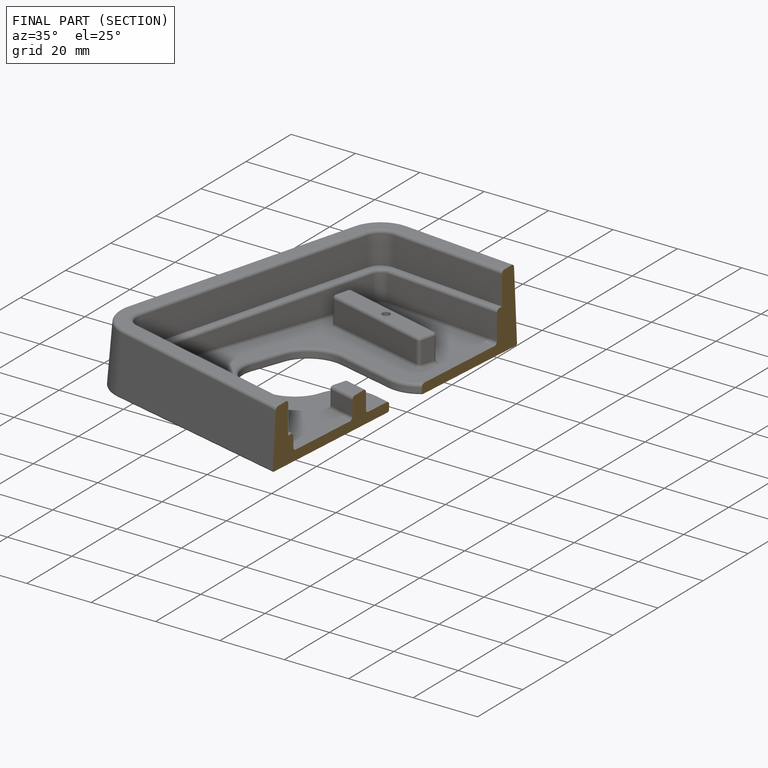
[diagram: finished part — half-section view (interior)]
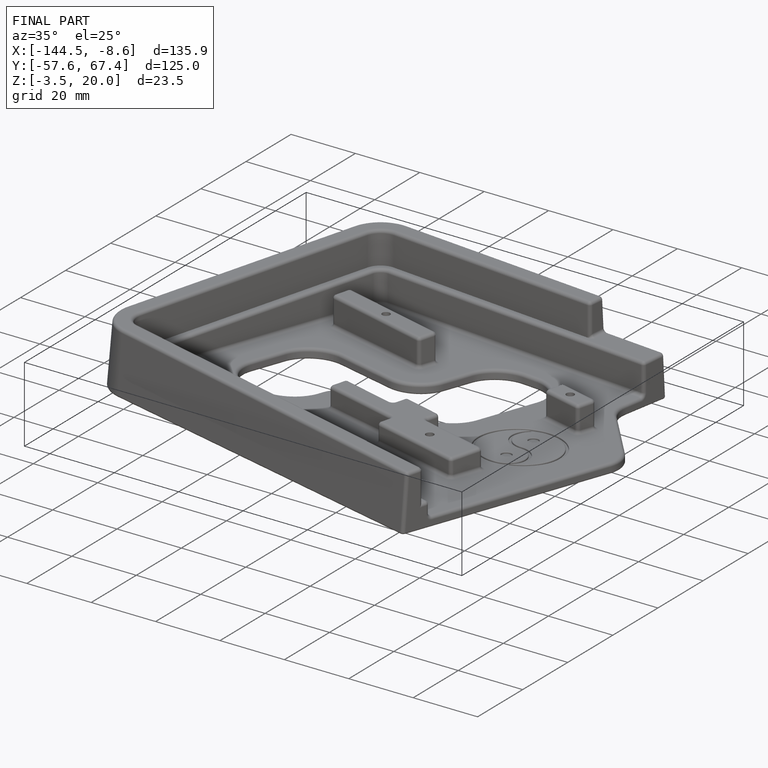
[diagram: finished part — iso view with bounding-box wireframe]
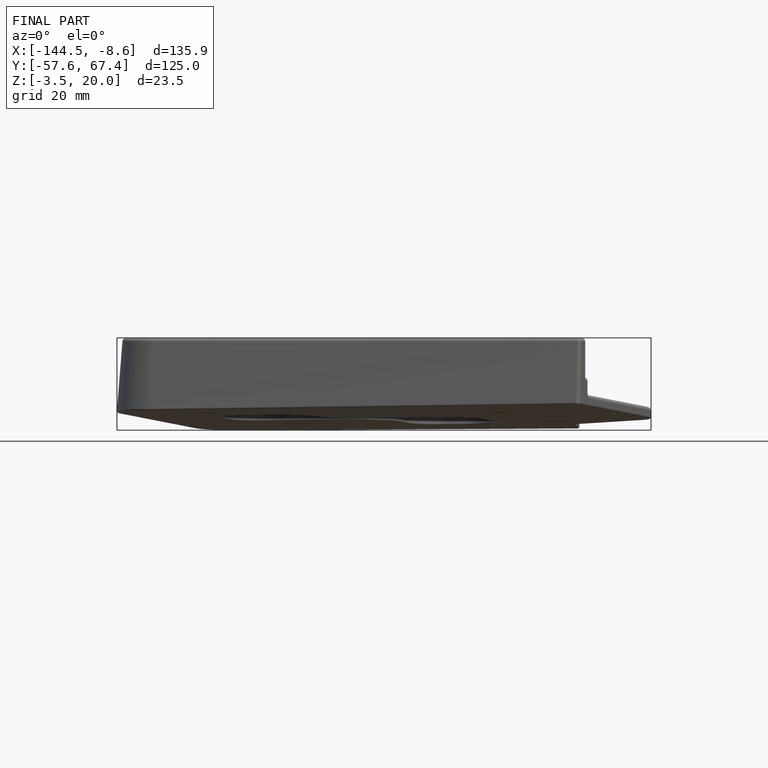
[diagram: finished part — front view with bounding-box wireframe]
